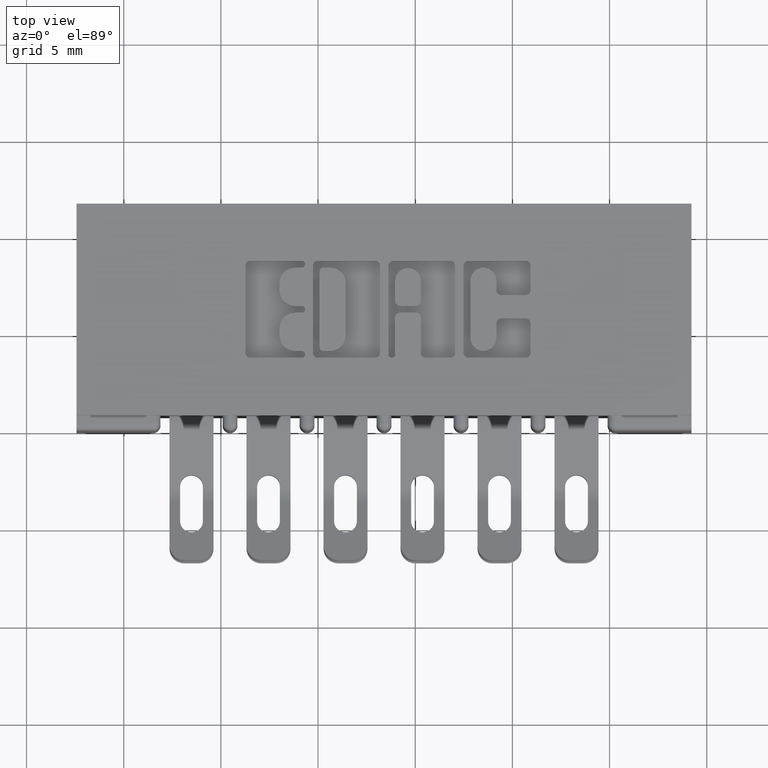
[diagram: clean part render]
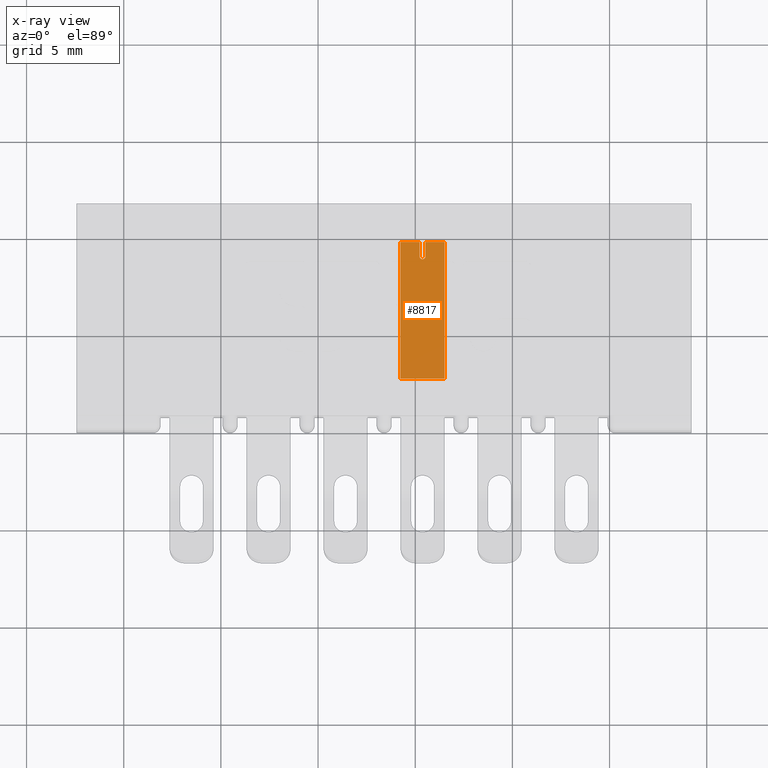
[diagram: x-ray — body ghosted, one internal face saturated and labeled with its STEP entity id]
A machine part, top view, then the same camera in x-ray: the body is ghosted and one INTERNAL B-rep face — a face not visible from any outside direction — is saturated and labeled: STEP entity #8817.
In plain terms, the highlighted planar face has unit normal (-0, -0, 1).
Its self-contained STEP definition (entity closure, byte-faithful):
#384 = DIRECTION ( 'NONE',  ( -1.000000000000000000, -1.937639598449110200E-029, -8.168727798041029500E-047 ) ) ;
#408 = VERTEX_POINT ( 'NONE', #6509 ) ;
#556 = ORIENTED_EDGE ( 'NONE', *, *, #3547, .T. ) ;
#699 = LINE ( 'NONE', #3389, #2210 ) ;
#858 = LINE ( 'NONE', #3970, #5501 ) ;
#914 = CARTESIAN_POINT ( 'NONE',  ( 0.04449999999999893600, 0.2770000000000665800, -0.03299999999995598100 ) ) ;
#1253 = CARTESIAN_POINT ( 'NONE',  ( 0.005999999999999881300, 0.2770000000000608100, -0.03299999999995598100 ) ) ;
#1551 = CARTESIAN_POINT ( 'NONE',  ( -0.005999999999999881300, 0.2480000000000607800, -0.03299999999995598100 ) ) ;
#1626 = DIRECTION ( 'NONE',  ( 1.937639598449110200E-029, 1.000000000000000000, 1.232783390642718100E-016 ) ) ;
#1878 = CARTESIAN_POINT ( 'NONE',  ( -0.005999999999999881300, 0.2420000000000607500, -0.03299999999995598100 ) ) ;
#2070 = VERTEX_POINT ( 'NONE', #5580 ) ;
#2180 = DIRECTION ( 'NONE',  ( -2.151297624094367900E-045, -1.232783390642718400E-016, 1.000000000000000000 ) ) ;
#2210 = VECTOR ( 'NONE', #6006, 39.37007874015748100 ) ;
#2255 = LINE ( 'NONE', #914, #4441 ) ;
#2443 = EDGE_CURVE ( 'NONE', #8695, #7622, #10124, .T. ) ;
#2659 = EDGE_CURVE ( 'NONE', #6290, #408, #2255, .T. ) ;
#2752 = CIRCLE ( 'NONE', #5644, 0.005999999999999983600 ) ;
#3207 = ORIENTED_EDGE ( 'NONE', *, *, #7349, .F. ) ;
#3371 = EDGE_CURVE ( 'NONE', #408, #9404, #5506, .T. ) ;
#3389 = CARTESIAN_POINT ( 'NONE',  ( 0.04449999999999893600, 0.2770000000000665800, -0.03299999999995598100 ) ) ;
#3547 = EDGE_CURVE ( 'NONE', #6290, #8695, #10356, .T. ) ;
#3685 = ORIENTED_EDGE ( 'NONE', *, *, #2659, .F. ) ;
#3699 = CARTESIAN_POINT ( 'NONE',  ( 0.0000000000000000000, 0.2480000000000607800, -0.03299999999995598100 ) ) ;
#3812 = CARTESIAN_POINT ( 'NONE',  ( -0.04449999999991916700, 0.2770000000000590300, -0.03299999999995598100 ) ) ;
#3814 = VERTEX_POINT ( 'NONE', #8796 ) ;
#3970 = CARTESIAN_POINT ( 'NONE',  ( 0.005999999999999881300, 0.2420000000000607500, -0.03299999999995598100 ) ) ;
#4386 = ORIENTED_EDGE ( 'NONE', *, *, #2443, .T. ) ;
#4422 = DIRECTION ( 'NONE',  ( 1.937639598449110200E-029, 1.000000000000000000, 1.232783390642718100E-016 ) ) ;
#4439 = ORIENTED_EDGE ( 'NONE', *, *, #3371, .F. ) ;
#4441 = VECTOR ( 'NONE', #4422, 39.37007874015748100 ) ;
#4843 = DIRECTION ( 'NONE',  ( 1.937639598449110200E-029, 1.000000000000000000, 1.219574997171547200E-015 ) ) ;
#5221 = CARTESIAN_POINT ( 'NONE',  ( -0.04449999999991916700, 0.2770000000000590300, -0.03299999999995598100 ) ) ;
#5501 = VECTOR ( 'NONE', #4843, 39.37007874015748100 ) ;
#5506 = LINE ( 'NONE', #8891, #7662 ) ;
#5580 = CARTESIAN_POINT ( 'NONE',  ( -0.005999999999999881300, 0.2770000000000608100, -0.03299999999995598100 ) ) ;
#5585 = DIRECTION ( 'NONE',  ( -1.937639598449110200E-029, -1.000000000000000000, -1.232783390642718400E-016 ) ) ;
#5644 = AXIS2_PLACEMENT_3D ( 'NONE', #3699, #9762, #8135 ) ;
#6006 = DIRECTION ( 'NONE',  ( -1.000000000000000000, -1.937639598449110200E-029, -8.168727798041029500E-047 ) ) ;
#6034 = DIRECTION ( 'NONE',  ( -1.000000000000000000, -1.937639598449110200E-029, -8.168727798041029500E-047 ) ) ;
#6286 = VERTEX_POINT ( 'NONE', #1551 ) ;
#6290 = VERTEX_POINT ( 'NONE', #10922 ) ;
#6509 = CARTESIAN_POINT ( 'NONE',  ( 0.04449999999999893600, 0.2770000000000665800, -0.03299999999995598100 ) ) ;
#6626 = EDGE_CURVE ( 'NONE', #6286, #2070, #7287, .T. ) ;
#6884 = ORIENTED_EDGE ( 'NONE', *, *, #6626, .F. ) ;
#6978 = EDGE_LOOP ( 'NONE', ( #3207, #9024, #4439, #3685, #556, #4386, #7632, #6884 ) ) ;
#7185 = DIRECTION ( 'NONE',  ( 1.937639598449110200E-029, 1.000000000000000000, 1.219574997171547200E-015 ) ) ;
#7287 = LINE ( 'NONE', #1878, #10370 ) ;
#7349 = EDGE_CURVE ( 'NONE', #3814, #6286, #2752, .T. ) ;
#7405 = VECTOR ( 'NONE', #384, 39.37007874015748100 ) ;
#7451 = EDGE_CURVE ( 'NONE', #3814, #9404, #858, .T. ) ;
#7622 = VERTEX_POINT ( 'NONE', #3812 ) ;
#7632 = ORIENTED_EDGE ( 'NONE', *, *, #8325, .F. ) ;
#7662 = VECTOR ( 'NONE', #6034, 39.37007874015748100 ) ;
#7941 = AXIS2_PLACEMENT_3D ( 'NONE', #9019, #2180, #5585 ) ;
#8135 = DIRECTION ( 'NONE',  ( -1.937639598449113900E-029, -1.000000000000000000, 0.0000000000000000000 ) ) ;
#8325 = EDGE_CURVE ( 'NONE', #2070, #7622, #699, .T. ) ;
#8497 = VECTOR ( 'NONE', #1626, 39.37007874015748100 ) ;
#8695 = VERTEX_POINT ( 'NONE', #10623 ) ;
#8796 = CARTESIAN_POINT ( 'NONE',  ( 0.005999999999999881300, 0.2480000000000607800, -0.03299999999995598100 ) ) ;
#8817 = ADVANCED_FACE ( 'NONE', ( #11004 ), #10745, .F. ) ;
#8891 = CARTESIAN_POINT ( 'NONE',  ( 0.04449999999999893600, 0.2770000000000665800, -0.03299999999995598100 ) ) ;
#9019 = CARTESIAN_POINT ( 'NONE',  ( 0.04449999999999893600, 0.2770000000000665800, -0.03299999999995598100 ) ) ;
#9024 = ORIENTED_EDGE ( 'NONE', *, *, #7451, .T. ) ;
#9404 = VERTEX_POINT ( 'NONE', #1253 ) ;
#9762 = DIRECTION ( 'NONE',  ( 2.151297624094367900E-045, 1.232783390642718400E-016, -1.000000000000000000 ) ) ;
#10124 = LINE ( 'NONE', #5221, #8497 ) ;
#10356 = LINE ( 'NONE', #10772, #7405 ) ;
#10370 = VECTOR ( 'NONE', #7185, 39.37007874015748100 ) ;
#10623 = CARTESIAN_POINT ( 'NONE',  ( -0.04449999999999893600, -5.053918788278887100E-015, -0.03299999999995598100 ) ) ;
#10745 = PLANE ( 'NONE',  #7941 ) ;
#10772 = CARTESIAN_POINT ( 'NONE',  ( 0.04449999999999893600, 5.053918788278887100E-015, -0.03299999999995598100 ) ) ;
#10922 = CARTESIAN_POINT ( 'NONE',  ( 0.04449999999999893600, 5.053918788278887100E-015, -0.03299999999995598100 ) ) ;
#11004 = FACE_OUTER_BOUND ( 'NONE', #6978, .T. ) ;